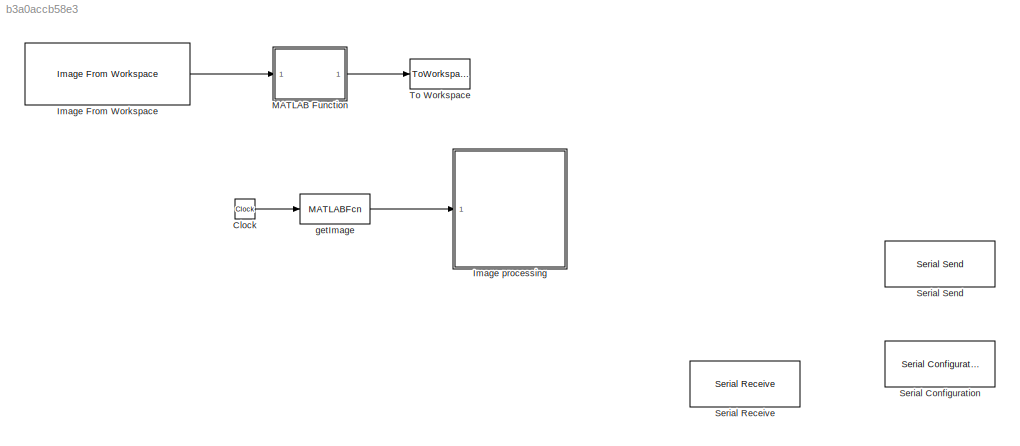
MODEL slx_b3a0accb58e3
KIND model
CONFIG AbsTol = auto
CONFIG EnableMultiTasking = off
CONFIG FixedStep = auto
CONFIG MaxStep = auto
CONFIG MinStep = auto
CONFIG RelTol = 1e-3
CONFIG SampleTimeConstraint = Unconstrained
CONFIG Solver = FixedStepAuto
CONFIG SolverName = FixedStepAuto
CONFIG StartTime = 0.0
CONFIG StopTime = 20
BLOCK [Clock] Clock
BLOCK [Reference] Image From Workspace  REF=visionsources/Image From Workspace
  Commented = on
  Ports = [0, 1]
  SourceBlock = visionsources/Image From Workspace
  SourceType = Image From Workspace
  Tag = vipblks_nd
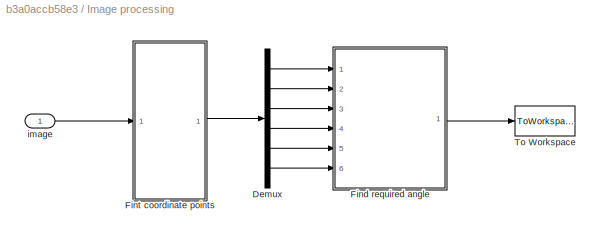
BLOCK [SubSystem] Image processing
  Ports = [1]
  RequestExecContextInheritance = off
  Variant = off
BLOCK [Demux] Image processing/Demux
  DisplayOption = bar
  Outputs = 6
  Ports = [1, 6]
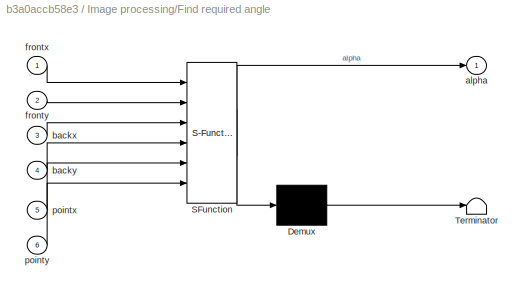
BLOCK [SubSystem] Image processing/Find required angle
  ErrorFcn = Stateflow.Translate.translate
  PermitHierarchicalResolution = ExplicitOnly
  Ports = [6, 1]
  RequestExecContextInheritance = off
  SFBlockType = MATLAB Function
  TreatAsAtomicUnit = on
  Variant = off
BLOCK [Demux] Image processing/Find required angle/ Demux 
  Outputs = 1
  Ports = [1, 1]
BLOCK [S-Function] Image processing/Find required angle/ SFunction 
  EnableBusSupport = on
  FunctionName = sf_sfun
  PortCounts = [6 2]
  Ports = [6, 2]
  SFcnIsStateOwnerBlock = off
  SFunctionDeploymentMode = off
  Tag = Stateflow S-Function picpicpic 2
BLOCK [Terminator] Image processing/Find required angle/ Terminator 
BLOCK [Outport] Image processing/Find required angle/alpha
  IconDisplay = Port number
BLOCK [Inport] Image processing/Find required angle/backx
  IconDisplay = Port number
  Port = 3
BLOCK [Inport] Image processing/Find required angle/backy
  IconDisplay = Port number
  Port = 4
BLOCK [Inport] Image processing/Find required angle/frontx
  IconDisplay = Port number
BLOCK [Inport] Image processing/Find required angle/fronty
  IconDisplay = Port number
  Port = 2
BLOCK [Inport] Image processing/Find required angle/pointx
  IconDisplay = Port number
  Port = 5
BLOCK [Inport] Image processing/Find required angle/pointy
  IconDisplay = Port number
  Port = 6
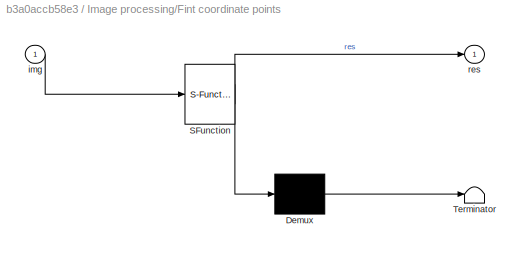
BLOCK [SubSystem] Image processing/Fint coordinate points
  ErrorFcn = Stateflow.Translate.translate
  PermitHierarchicalResolution = ExplicitOnly
  Ports = [1, 1]
  RequestExecContextInheritance = off
  SFBlockType = MATLAB Function
  TreatAsAtomicUnit = on
  Variant = off
BLOCK [Demux] Image processing/Fint coordinate points/ Demux 
  Outputs = 1
  Ports = [1, 1]
BLOCK [S-Function] Image processing/Fint coordinate points/ SFunction 
  EnableBusSupport = on
  FunctionName = sf_sfun
  PortCounts = [1 2]
  Ports = [1, 2]
  SFcnIsStateOwnerBlock = off
  SFunctionDeploymentMode = off
  Tag = Stateflow S-Function picpicpic 1
BLOCK [Terminator] Image processing/Fint coordinate points/ Terminator 
BLOCK [Inport] Image processing/Fint coordinate points/img
  IconDisplay = Port number
BLOCK [Outport] Image processing/Fint coordinate points/res
  IconDisplay = Port number
BLOCK [ToWorkspace] Image processing/To Workspace
  FixptAsFi = on
  MaxDataPoints = inf
  Ports = [1]
  SampleTime = -1
  Save2DSignal = 3-D array (concatenate along third dimension)
  SaveFormat = Timeseries
  VariableName = simout
BLOCK [Inport] Image processing/image 
  IconDisplay = Port number
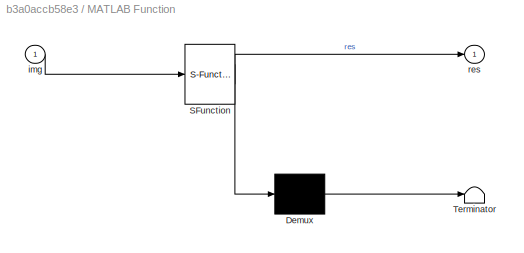
BLOCK [SubSystem] MATLAB Function
  Commented = on
  ErrorFcn = Stateflow.Translate.translate
  PermitHierarchicalResolution = ExplicitOnly
  Ports = [1, 1]
  RequestExecContextInheritance = off
  SFBlockType = MATLAB Function
  TreatAsAtomicUnit = on
  Variant = off
BLOCK [Demux] MATLAB Function/ Demux 
  Outputs = 1
  Ports = [1, 1]
BLOCK [S-Function] MATLAB Function/ SFunction 
  EnableBusSupport = on
  FunctionName = sf_sfun
  PortCounts = [1 2]
  Ports = [1, 2]
  SFcnIsStateOwnerBlock = off
  SFunctionDeploymentMode = off
  Tag = Stateflow S-Function picpicpic 3
BLOCK [Terminator] MATLAB Function/ Terminator 
BLOCK [Inport] MATLAB Function/img
  IconDisplay = Port number
BLOCK [Outport] MATLAB Function/res
  IconDisplay = Port number
BLOCK [Reference] Serial Configuration  REF=instrumentlib/Serial Configuration
  Commented = on
  Ports = []
  Priority = -200000
  SourceBlock = instrumentlib/Serial Configuration
  SourceType = Serial Configuration
BLOCK [Reference] Serial Receive  REF=instrumentlib/Serial Receive
  Commented = on
  Ports = [0, 1]
  SourceBlock = instrumentlib/Serial Receive
  SourceType = Serial Receive
BLOCK [Reference] Serial Send  REF=instrumentlib/Serial Send
  Commented = on
  Ports = [1]
  SourceBlock = instrumentlib/Serial Send
  SourceType = Serial Send
BLOCK [ToWorkspace] To Workspace
  Commented = on
  FixptAsFi = on
  MaxDataPoints = inf
  Ports = [1]
  SampleTime = -1
  Save2DSignal = 2-D array (concatenate along first dimension)
  SaveFormat = Structure With Time
  VariableName = imguur
BLOCK [MATLABFcn] getImage
  MATLABFcn = getImage
  Output1D = off
  Ports = [1, 1]
LINE Clock:1 -> getImage:1
LINE Image From Workspace:1 -> MATLAB Function:1
LINE Image processing/Demux:1 -> Image processing/Find required angle:1
LINE Image processing/Demux:2 -> Image processing/Find required angle:2
LINE Image processing/Demux:3 -> Image processing/Find required angle:3
LINE Image processing/Demux:4 -> Image processing/Find required angle:4
LINE Image processing/Demux:5 -> Image processing/Find required angle:5
LINE Image processing/Demux:6 -> Image processing/Find required angle:6
LINE Image processing/Find required angle:1 -> Image processing/To Workspace:1
LINE Image processing/Fint coordinate points:1 -> Image processing/Demux:1
LINE Image processing/image :1 -> Image processing/Fint coordinate points:1
LINE MATLAB Function:1 -> To Workspace:1
LINE getImage:1 -> Image processing:1
CHART Image processing/Fint coordinate points states=1 transitions=1
  STATE_LABEL 'eML_blk_kernel()'
  STATE_LABEL "SCRIPT:\nfunction res = findColor(img)\n% image is a 480 x 1920 matrix. image = [r g b] where r,g,b (480X640) \nresizeIm = 0.1;\n\n%image = ('double1.jpg');\n%image = imread(image);\nC = uint8(zeros(480,640,3));\nC(:,:,1) = img(:,1:640);\nC(:,:,2) = img(:,641:1280);\nC(:,:,3) = img(:,1281:1920);\n\nimage = imresize(C,resizeIm);\n[m,n] = size(image);\ndisp('m:');\ndisp(m);\ndisp('n:');\ndisp(n);\n\n% red = image(:,1:...<+1075ch>"
CHART Image processing/Find 
required angle states=1 transitions=1
  STATE_LABEL 'eML_blk_kernel()'
  STATE_LABEL 'SCRIPT:\nfunction alpha = findAngle(frontx, fronty, backx, backy, pointx, pointy)\n\n%%setting the coordinates for the middle of the car \nif frontx < backx\n    carx = frontx + abs(backx - frontx)/2; \nelse\n    carx = backx + abs(backx - frontx)/2; \nend\n\nif fronty < backy\n    cary = fronty + abs(backy - fronty)/2; \nelse\n    cary = backy + abs(backy - fronty)/2;  \nend\n\n\n%%finding the vector between car ...<+343ch>'
CHART MATLAB Function states=1 transitions=1
  STATE_LABEL 'eML_blk_kernel()'
  STATE_LABEL "SCRIPT:\nfunction res = fcn(img)\n\nres = 0; \n\nr = img(:,:,1); \ng = img(:,:,2); \nb = img(:,:,3)\n\nimage(:,:,1) = r;\nimage(:,:,2) = g;\nimage(:,:,3) = b;\nresizeIm = 0.1;\n\n[m,n] = size(image);\n\nred = image(:,:,1);\nblue = image(:,:,3);\ngreen = image - red;\ngreenIntensity = rgb2gray(green);\ngreenBinary = imbinarize(greenIntensity);\ns = regionprops(greenBinary,'centroid');\ncentroids = cat(1, s.Centroid);\na ...<+750ch>"
